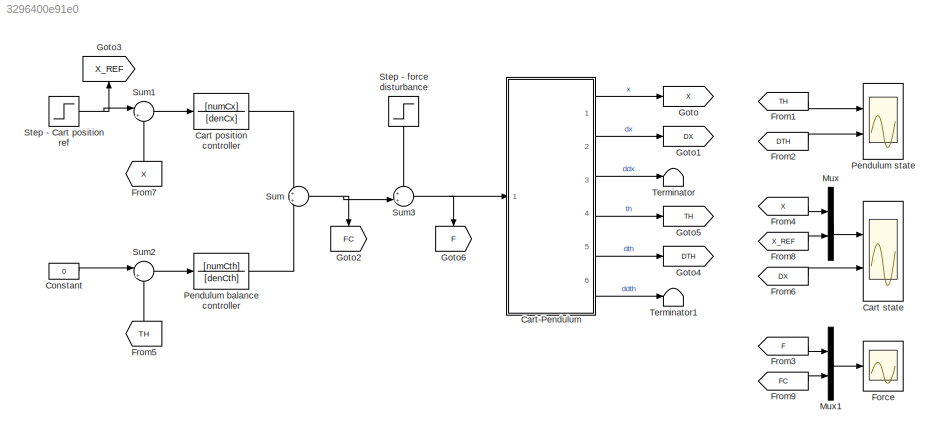
MODEL slx_3296400e91e0
KIND model
CONFIG AbsTol = auto
CONFIG EnableMultiTasking = on
CONFIG FixedStep = auto
CONFIG MaxStep = 0.001
CONFIG MinStep = auto
CONFIG RelTol = 1e-3
CONFIG SampleTimeConstraint = Unconstrained
CONFIG Solver = ode45
CONFIG SolverName = ode45
CONFIG StartTime = 0.0
CONFIG StopTime = 30
BLOCK [TransferFcn] Cart position controller
  Denominator = [denCx]
  Numerator = [numCx]
BLOCK [Scope] Cart state
  NumInputPorts = 2
  Ports = [2]
  ScopeSpecificationString = Simulink.scopes.TimeScopeBlockCfg('CurrentConfiguration', extmgr.ConfigurationSet(extmgr.Configuration('Core','General UI',true),extmgr.Configuration('Core','Source UI',true),extmgr.Configuration('Sources','WiredSimulink',true,'DataLogging',true,'DataLoggingVariableName','cart_state','DataLoggingSaveFormat','StructureWithTime','DataLoggingDecimation','1','DataLoggingDecimateData',true),extmgr.Conf...<+2290ch>
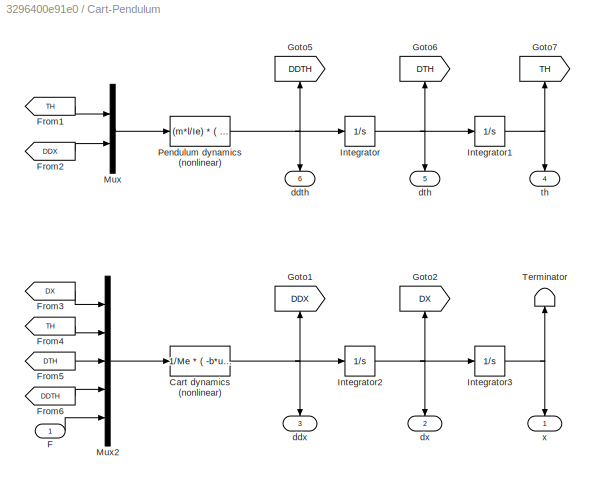
BLOCK [SubSystem] Cart-Pendulum
  Ports = [1, 6]
  RequestExecContextInheritance = off
  Variant = off
BLOCK [Fcn] Cart-Pendulum/Cart dynamics (nonlinear)
  Expr = 1/Me * ( -b*u(1) + m*l*cos(u(2))*u(4) - m*l*sin(u(2))*u(3)^2 + u(5) )
BLOCK [Inport] Cart-Pendulum/F
  IconDisplay = Port number
BLOCK [From] Cart-Pendulum/From1
  GotoTag = TH
BLOCK [From] Cart-Pendulum/From2
  GotoTag = DDX
BLOCK [From] Cart-Pendulum/From3
  GotoTag = DX
BLOCK [From] Cart-Pendulum/From4
  GotoTag = TH
BLOCK [From] Cart-Pendulum/From5
  GotoTag = DTH
BLOCK [From] Cart-Pendulum/From6
  GotoTag = DDTH
BLOCK [Goto] Cart-Pendulum/Goto1
  GotoTag = DDX
BLOCK [Goto] Cart-Pendulum/Goto2
  GotoTag = DX
BLOCK [Goto] Cart-Pendulum/Goto5
  GotoTag = DDTH
BLOCK [Goto] Cart-Pendulum/Goto6
  GotoTag = DTH
BLOCK [Goto] Cart-Pendulum/Goto7
  GotoTag = TH
BLOCK [Integrator] Cart-Pendulum/Integrator
  InitialCondition = dth0
  Ports = [1, 1]
BLOCK [Integrator] Cart-Pendulum/Integrator1
  InitialCondition = th0
  Ports = [1, 1]
BLOCK [Integrator] Cart-Pendulum/Integrator2
  InitialCondition = dx0
  Ports = [1, 1]
BLOCK [Integrator] Cart-Pendulum/Integrator3
  InitialCondition = x0
  Ports = [1, 1]
BLOCK [Mux] Cart-Pendulum/Mux
  DisplayOption = bar
  Inputs = 2
  Ports = [2, 1]
BLOCK [Mux] Cart-Pendulum/Mux2
  DisplayOption = bar
  Inputs = 5
  Ports = [5, 1]
BLOCK [Fcn] Cart-Pendulum/Pendulum dynamics (nonlinear)
  Expr = (m*l/Ie) * ( cos(u(1))*u(2) + g*sin(u(1)) )
BLOCK [Terminator] Cart-Pendulum/Terminator
BLOCK [Outport] Cart-Pendulum/ddth
  IconDisplay = Port number
  Port = 6
BLOCK [Outport] Cart-Pendulum/ddx
  IconDisplay = Port number
  Port = 3
BLOCK [Outport] Cart-Pendulum/dth
  IconDisplay = Port number
  Port = 5
BLOCK [Outport] Cart-Pendulum/dx
  IconDisplay = Port number
  Port = 2
BLOCK [Outport] Cart-Pendulum/th
  IconDisplay = Port number
  Port = 4
BLOCK [Outport] Cart-Pendulum/x
  IconDisplay = Port number
BLOCK [Constant] Constant
  Value = 0
BLOCK [Scope] Force
  NumInputPorts = 1
  Ports = [1]
  ScopeSpecificationString = Simulink.scopes.TimeScopeBlockCfg('CurrentConfiguration', extmgr.ConfigurationSet(extmgr.Configuration('Core','General UI',true),extmgr.Configuration('Core','Source UI',true),extmgr.Configuration('Sources','WiredSimulink',true,'DataLogging',true,'DataLoggingVariableName','force','DataLoggingSaveFormat','StructureWithTime','DataLoggingDecimation','1','DataLoggingDecimateData',true),extmgr.Configura...<+1590ch>
BLOCK [From] From1
  GotoTag = TH
BLOCK [From] From2
  GotoTag = DTH
BLOCK [From] From3
  GotoTag = F
BLOCK [From] From4
  GotoTag = X
BLOCK [From] From5
  GotoTag = TH
BLOCK [From] From6
  GotoTag = DX
BLOCK [From] From7
  GotoTag = X
BLOCK [From] From8
  GotoTag = X_REF
BLOCK [From] From9
  GotoTag = FC
BLOCK [Goto] Goto
  GotoTag = X
BLOCK [Goto] Goto1
  GotoTag = DX
BLOCK [Goto] Goto2
  GotoTag = FC
BLOCK [Goto] Goto3
  GotoTag = X_REF
BLOCK [Goto] Goto4
  GotoTag = DTH
BLOCK [Goto] Goto5
  GotoTag = TH
BLOCK [Goto] Goto6
  GotoTag = F
BLOCK [Mux] Mux
  DisplayOption = bar
  Inputs = 2
  Ports = [2, 1]
BLOCK [Mux] Mux1
  DisplayOption = bar
  Inputs = 2
  Ports = [2, 1]
BLOCK [TransferFcn] Pendulum balance controller
  Denominator = [denCth]
  Numerator = [numCth]
BLOCK [Scope] Pendulum state
  NumInputPorts = 2
  Ports = [2]
  ScopeSpecificationString = Simulink.scopes.TimeScopeBlockCfg('CurrentConfiguration', extmgr.ConfigurationSet(extmgr.Configuration('Core','General UI',true),extmgr.Configuration('Core','Source UI',true),extmgr.Configuration('Sources','WiredSimulink',true,'DataLogging',true,'DataLoggingVariableName','pend_state','DataLoggingSaveFormat','StructureWithTime','DataLoggingDecimation','1','DataLoggingDecimateData',true),extmgr.Conf...<+2265ch>
BLOCK [Step] Step - Cart position ref
  After = As
  SampleTime = 0
  Time = ts
BLOCK [Step] Step - force disturbance
  After = Ad
  SampleTime = 0
  Time = td
BLOCK [Sum] Sum
  IconShape = round
  InputSameDT = off
  OutDataTypeStr = Inherit: Inherit via internal rule
  Ports = [2, 1]
  SaturateOnIntegerOverflow = off
BLOCK [Sum] Sum1
  IconShape = round
  InputSameDT = off
  Inputs = |+-
  OutDataTypeStr = Inherit: Inherit via internal rule
  Ports = [2, 1]
  SaturateOnIntegerOverflow = off
BLOCK [Sum] Sum2
  IconShape = round
  InputSameDT = off
  Inputs = |+-
  OutDataTypeStr = Inherit: Inherit via internal rule
  Ports = [2, 1]
  SaturateOnIntegerOverflow = off
BLOCK [Sum] Sum3
  IconShape = round
  InputSameDT = off
  Inputs = ++|
  OutDataTypeStr = Inherit: Inherit via internal rule
  Ports = [2, 1]
  SaturateOnIntegerOverflow = off
BLOCK [Terminator] Terminator
BLOCK [Terminator] Terminator1
LINE Cart position controller:1 -> Sum:1
NET Cart-Pendulum/Cart dynamics (nonlinear):1 -> Cart-Pendulum/Goto1:1, Cart-Pendulum/Integrator2:1, Cart-Pendulum/ddx:1
LINE Cart-Pendulum/F:1 -> Cart-Pendulum/Mux2:5
LINE Cart-Pendulum/From1:1 -> Cart-Pendulum/Mux:1
LINE Cart-Pendulum/From2:1 -> Cart-Pendulum/Mux:2
LINE Cart-Pendulum/From3:1 -> Cart-Pendulum/Mux2:1
LINE Cart-Pendulum/From4:1 -> Cart-Pendulum/Mux2:2
LINE Cart-Pendulum/From5:1 -> Cart-Pendulum/Mux2:3
LINE Cart-Pendulum/From6:1 -> Cart-Pendulum/Mux2:4
NET Cart-Pendulum/Integrator1:1 -> Cart-Pendulum/Goto7:1, Cart-Pendulum/th:1
NET Cart-Pendulum/Integrator2:1 -> Cart-Pendulum/Goto2:1, Cart-Pendulum/Integrator3:1, Cart-Pendulum/dx:1
NET Cart-Pendulum/Integrator3:1 -> Cart-Pendulum/Terminator:1, Cart-Pendulum/x:1
NET Cart-Pendulum/Integrator:1 -> Cart-Pendulum/Goto6:1, Cart-Pendulum/Integrator1:1, Cart-Pendulum/dth:1
LINE Cart-Pendulum/Mux2:1 -> Cart-Pendulum/Cart dynamics (nonlinear):1
LINE Cart-Pendulum/Mux:1 -> Cart-Pendulum/Pendulum dynamics (nonlinear):1
NET Cart-Pendulum/Pendulum dynamics (nonlinear):1 -> Cart-Pendulum/Goto5:1, Cart-Pendulum/Integrator:1, Cart-Pendulum/ddth:1
LINE Cart-Pendulum:1 -> Goto:1
LINE Cart-Pendulum:2 -> Goto1:1
LINE Cart-Pendulum:3 -> Terminator:1
LINE Cart-Pendulum:4 -> Goto5:1
LINE Cart-Pendulum:5 -> Goto4:1
LINE Cart-Pendulum:6 -> Terminator1:1
LINE Constant:1 -> Sum2:1
LINE From1:1 -> Pendulum state:1
LINE From2:1 -> Pendulum state:2
LINE From3:1 -> Mux1:1
LINE From4:1 -> Mux:1
LINE From5:1 -> Sum2:2
LINE From6:1 -> Cart state:2
LINE From7:1 -> Sum1:2
LINE From8:1 -> Mux:2
LINE From9:1 -> Mux1:2
LINE Mux1:1 -> Force:1
LINE Mux:1 -> Cart state:1
LINE Pendulum balance controller:1 -> Sum:2
NET Step - Cart position ref:1 -> Goto3:1, Sum1:1
LINE Step - force disturbance:1 -> Sum3:1
LINE Sum1:1 -> Cart position controller:1
LINE Sum2:1 -> Pendulum balance controller:1
NET Sum3:1 -> Cart-Pendulum:1, Goto6:1
NET Sum:1 -> Goto2:1, Sum3:2
note: NET lines group one-source signal fan-out (src -> all destinations, sorted); 1:1 wires keep LINE
